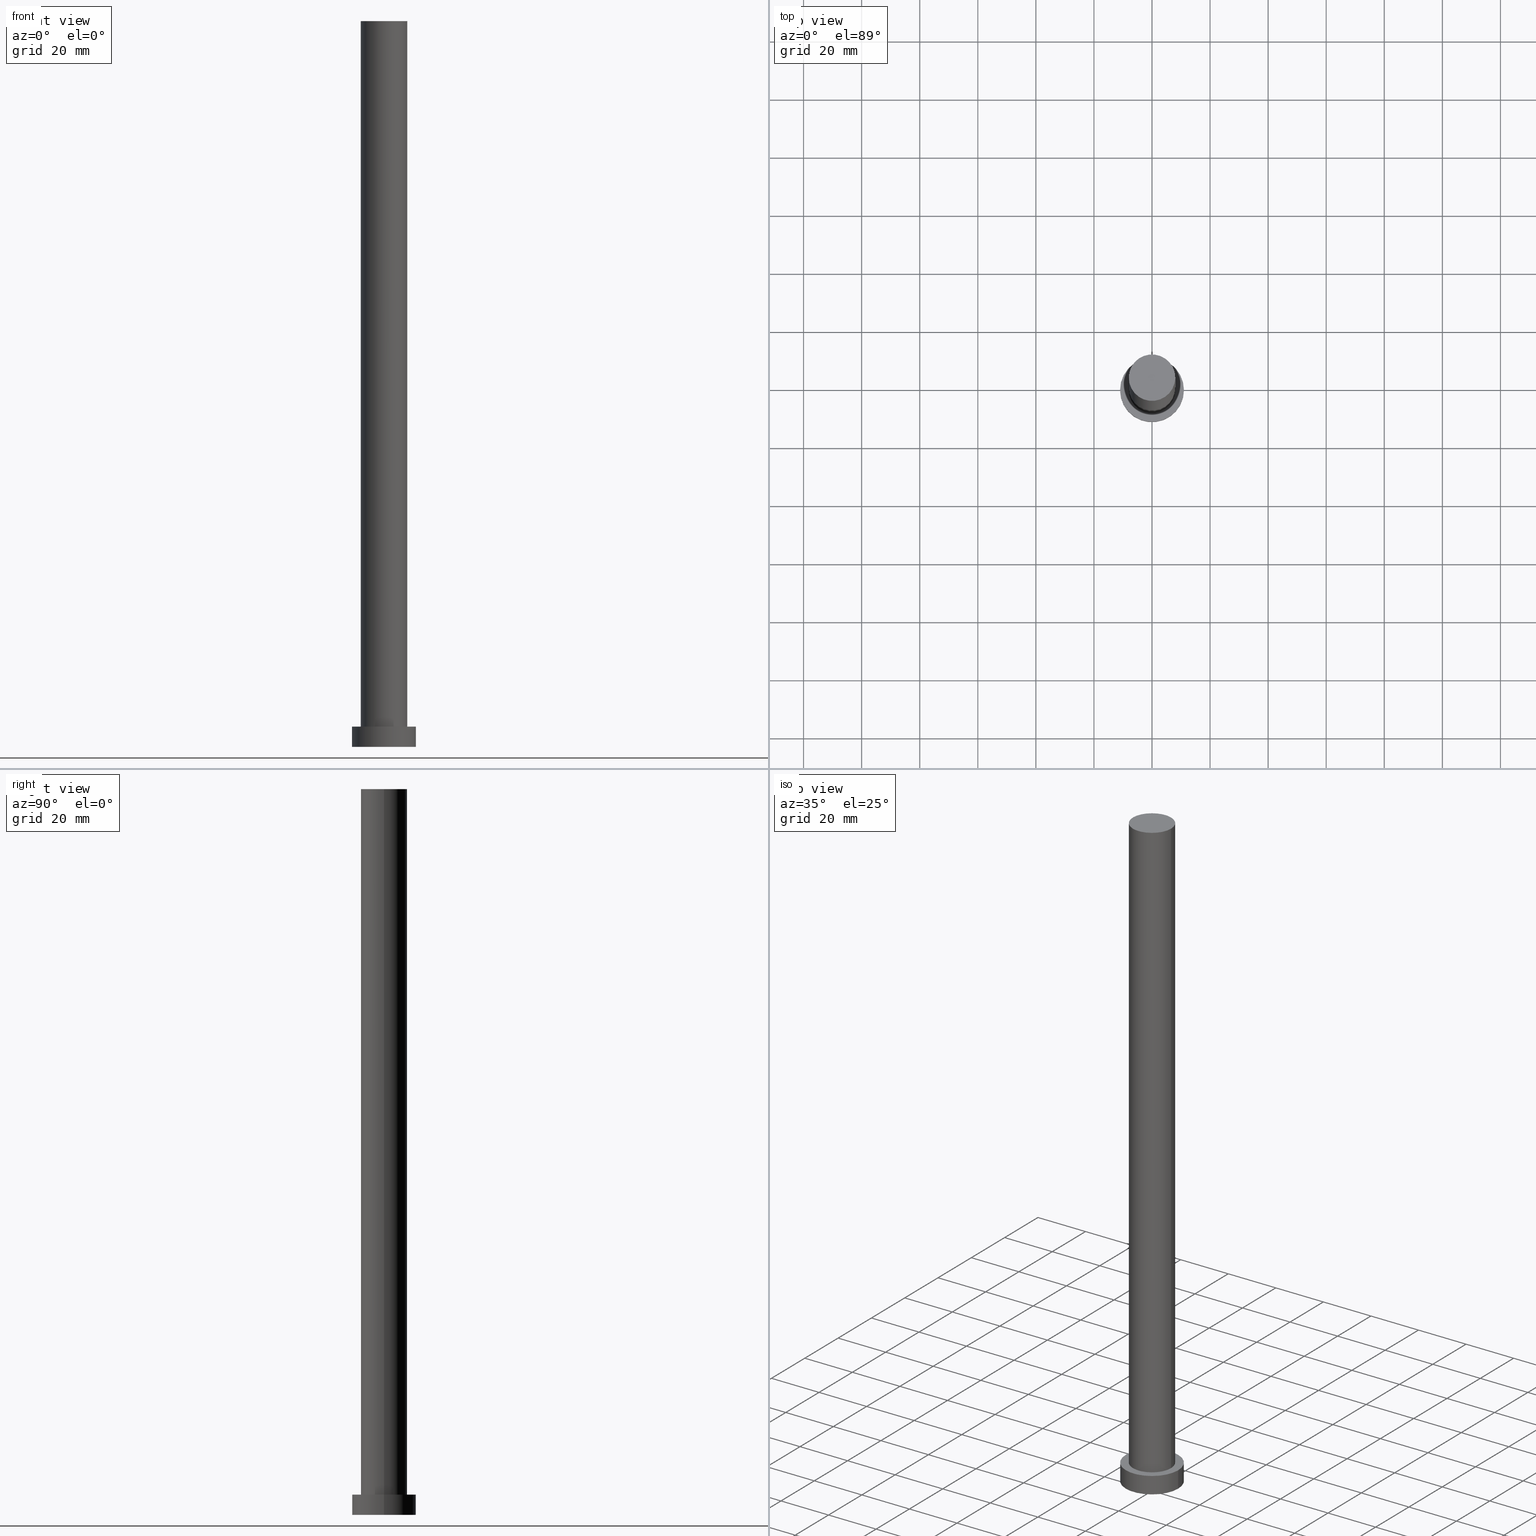
[diagram: canonical four-view strip — front | top / right | iso, engineering-drawing reading convention]
A machine part, canonical four-view strip (front | top / right | iso — engineering-drawing reading convention). The complete STEP part file that produces these views, byte-faithful:
ISO-10303-21;
HEADER;
FILE_DESCRIPTION (( 'STEP AP203' ),
    '1' );
FILE_NAME ('76f3.STEP',
    '2023-02-13T08:52:44',
    ( '' ),
    ( '' ),
    'SwSTEP 2.0',
    'SolidWorks 2019',
    '' );
FILE_SCHEMA (( 'CONFIG_CONTROL_DESIGN' ));
ENDSEC;

DATA;
#1 = CARTESIAN_POINT ( 'NONE',  ( 0.000000000000000000, 0.000000000000000000, 250.0000000000000000 ) ) ;
#2 = AXIS2_PLACEMENT_3D ( 'NONE', #24, #6, #19 ) ;
#3 = DIRECTION ( 'NONE',  ( 1.000000000000000000, 0.000000000000000000, 0.000000000000000000 ) ) ;
#4 = CARTESIAN_POINT ( 'NONE',  ( 11.00000000000000000, 1.347111479062088405E-15, 7.000000000000000000 ) ) ;
#5 = DIRECTION ( 'NONE',  ( 1.000000000000000000, 0.000000000000000000, 0.000000000000000000 ) ) ;
#6 = DIRECTION ( 'NONE',  ( 0.000000000000000000, 0.000000000000000000, 1.000000000000000000 ) ) ;
#7 = APPROVAL ( #90, 'NEUR�EN�' ) ;
#8 =( GEOMETRIC_REPRESENTATION_CONTEXT ( 3 ) GLOBAL_UNCERTAINTY_ASSIGNED_CONTEXT ( ( #66 ) ) GLOBAL_UNIT_ASSIGNED_CONTEXT ( ( #88, #27, #71 ) ) REPRESENTATION_CONTEXT ( 'NONE', 'WORKASPACE' ) );
#9 = APPROVAL_ROLE ( '' ) ;
#10 = CARTESIAN_POINT ( 'NONE',  ( 0.000000000000000000, 0.000000000000000000, 0.000000000000000000 ) ) ;
#11 = EDGE_CURVE ( 'NONE', #217, #18, #31, .T. ) ;
#12 = APPROVAL_DATE_TIME ( #207, #201 ) ;
#13 = ORIENTED_EDGE ( 'NONE', *, *, #230, .T. ) ;
#14 = CC_DESIGN_PERSON_AND_ORGANIZATION_ASSIGNMENT ( #183, #131, ( #102 ) ) ;
#15 = ORIENTED_EDGE ( 'NONE', *, *, #93, .F. ) ;
#16 = ORIENTED_EDGE ( 'NONE', *, *, #211, .F. ) ;
#17 = AXIS2_PLACEMENT_3D ( 'NONE', #221, #147, #179 ) ;
#18 = VERTEX_POINT ( 'NONE', #213 ) ;
#19 = DIRECTION ( 'NONE',  ( 1.000000000000000000, 0.000000000000000000, -0.000000000000000000 ) ) ;
#20 = CIRCLE ( 'NONE', #98, 8.000000000000000000 ) ;
#21 = DIRECTION ( 'NONE',  ( 0.000000000000000000, 0.000000000000000000, 1.000000000000000000 ) ) ;
#22 = PRODUCT_DEFINITION_FORMATION_WITH_SPECIFIED_SOURCE ( 'LIBOVOLN�', '', #89, .NOT_KNOWN. ) ;
#23 = CARTESIAN_POINT ( 'NONE',  ( 0.000000000000000000, 0.000000000000000000, 7.000000000000000000 ) ) ;
#24 = CARTESIAN_POINT ( 'NONE',  ( 0.000000000000000000, 0.000000000000000000, 7.000000000000000000 ) ) ;
#25 = APPROVAL_DATE_TIME ( #49, #7 ) ;
#26 = APPROVAL_DATE_TIME ( #203, #252 ) ;
#27 =( NAMED_UNIT ( * ) PLANE_ANGLE_UNIT ( ) SI_UNIT ( $, .RADIAN. ) );
#28 = DIRECTION ( 'NONE',  ( 1.000000000000000000, 0.000000000000000000, 0.000000000000000000 ) ) ;
#29 = CC_DESIGN_APPROVAL ( #252, ( #73 ) ) ;
#30 = PERSON_AND_ORGANIZATION ( #101, #120 ) ;
#31 = LINE ( 'NONE', #197, #54 ) ;
#32 = AXIS2_PLACEMENT_3D ( 'NONE', #237, #69, #92 ) ;
#33 = CARTESIAN_POINT ( 'NONE',  ( 0.000000000000000000, 0.000000000000000000, 250.0000000000000000 ) ) ;
#34 = VERTEX_POINT ( 'NONE', #176 ) ;
#35 = ORIENTED_EDGE ( 'NONE', *, *, #93, .T. ) ;
#36 = AXIS2_PLACEMENT_3D ( 'NONE', #10, #188, #28 ) ;
#37 = DIRECTION ( 'NONE',  ( 0.000000000000000000, 0.000000000000000000, 1.000000000000000000 ) ) ;
#38 = DIRECTION ( 'NONE',  ( 0.000000000000000000, 0.000000000000000000, 1.000000000000000000 ) ) ;
#39 = CALENDAR_DATE ( 2023, 13, 2 ) ;
#40 = CYLINDRICAL_SURFACE ( 'NONE', #17, 11.00000000000000000 ) ;
#41 = EDGE_CURVE ( 'NONE', #212, #217, #216, .T. ) ;
#42 = DIRECTION ( 'NONE',  ( 1.000000000000000000, 0.000000000000000000, -0.000000000000000000 ) ) ;
#43 = DIRECTION ( 'NONE',  ( -1.000000000000000000, 0.000000000000000000, 0.000000000000000000 ) ) ;
#44 = CALENDAR_DATE ( 2023, 13, 2 ) ;
#45 = CLOSED_SHELL ( 'NONE', ( #62, #87, #222, #55, #72, #196, #232 ) ) ;
#46 = COORDINATED_UNIVERSAL_TIME_OFFSET ( 1, 0, .AHEAD. ) ;
#47 = PERSON_AND_ORGANIZATION ( #101, #120 ) ;
#48 = DATE_AND_TIME ( #229, #141 ) ;
#49 = DATE_AND_TIME ( #231, #246 ) ;
#50 = ORIENTED_EDGE ( 'NONE', *, *, #94, .T. ) ;
#51 = PRODUCT_RELATED_PRODUCT_CATEGORY ( 'detail', '', ( #89 ) ) ;
#52 = EDGE_LOOP ( 'NONE', ( #96, #125 ) ) ;
#53 = EDGE_CURVE ( 'NONE', #118, #215, #192, .T. ) ;
#54 = VECTOR ( 'NONE', #135, 1000.000000000000000 ) ;
#55 = ADVANCED_FACE ( 'NONE', ( #78, #159 ), #223, .T. ) ;
#56 = ORIENTED_EDGE ( 'NONE', *, *, #236, .T. ) ;
#57 = EDGE_LOOP ( 'NONE', ( #76, #139, #249, #138 ) ) ;
#58 = CYLINDRICAL_SURFACE ( 'NONE', #169, 11.00000000000000000 ) ;
#59 = CC_DESIGN_APPROVAL ( #7, ( #102 ) ) ;
#60 = AXIS2_PLACEMENT_3D ( 'NONE', #1, #181, #43 ) ;
#61 = FACE_OUTER_BOUND ( 'NONE', #174, .T. ) ;
#62 = ADVANCED_FACE ( 'NONE', ( #143 ), #182, .T. ) ;
#63 = CARTESIAN_POINT ( 'NONE',  ( 8.000000000000000000, 9.797174393178825657E-16, 250.0000000000000000 ) ) ;
#64 = CC_DESIGN_SECURITY_CLASSIFICATION ( #73, ( #22 ) ) ;
#65 = DIRECTION ( 'NONE',  ( 1.000000000000000000, 0.000000000000000000, 0.000000000000000000 ) ) ;
#66 = UNCERTAINTY_MEASURE_WITH_UNIT (LENGTH_MEASURE( 1.000000000000000082E-05 ), #88, 'distance_accuracy_value', 'NONE');
#67 = COORDINATED_UNIVERSAL_TIME_OFFSET ( 1, 0, .AHEAD. ) ;
#68 = PERSON_AND_ORGANIZATION_ROLE ( 'classification_officer' ) ;
#69 = DIRECTION ( 'NONE',  ( 0.000000000000000000, 0.000000000000000000, 1.000000000000000000 ) ) ;
#70 = PERSON_AND_ORGANIZATION_ROLE ( 'design_supplier' ) ;
#71 =( NAMED_UNIT ( * ) SI_UNIT ( $, .STERADIAN. ) SOLID_ANGLE_UNIT ( ) );
#72 = ADVANCED_FACE ( 'NONE', ( #61 ), #144, .F. ) ;
#73 = SECURITY_CLASSIFICATION ( '', '', #114 ) ;
#74 = ORIENTED_EDGE ( 'NONE', *, *, #11, .F. ) ;
#75 = ORIENTED_EDGE ( 'NONE', *, *, #226, .T. ) ;
#76 = ORIENTED_EDGE ( 'NONE', *, *, #123, .F. ) ;
#77 = CIRCLE ( 'NONE', #162, 11.00000000000000000 ) ;
#78 = FACE_BOUND ( 'NONE', #156, .T. ) ;
#79 = EDGE_LOOP ( 'NONE', ( #214, #124, #13, #35 ) ) ;
#80 = PLANE ( 'NONE',  #32 ) ;
#81 = DIRECTION ( 'NONE',  ( 0.000000000000000000, 0.000000000000000000, 1.000000000000000000 ) ) ;
#82 = CARTESIAN_POINT ( 'NONE',  ( 0.000000000000000000, 0.000000000000000000, 7.000000000000000000 ) ) ;
#83 = MANIFOLD_SOLID_BREP ( 'P�idat vysunut�m3', #45 ) ;
#84 = CARTESIAN_POINT ( 'NONE',  ( 0.000000000000000000, 0.000000000000000000, 7.000000000000000000 ) ) ;
#85 = FACE_OUTER_BOUND ( 'NONE', #134, .T. ) ;
#86 = CARTESIAN_POINT ( 'NONE',  ( -8.000000000000000000, 0.000000000000000000, 7.000000000000000000 ) ) ;
#87 = ADVANCED_FACE ( 'NONE', ( #104 ), #40, .T. ) ;
#88 =( LENGTH_UNIT ( ) NAMED_UNIT ( * ) SI_UNIT ( .MILLI., .METRE. ) );
#89 = PRODUCT ( '76f3', '76f3', '', ( #210 ) ) ;
#90 = APPROVAL_STATUS ( 'not_yet_approved' ) ;
#91 = CIRCLE ( 'NONE', #128, 11.00000000000000000 ) ;
#92 = DIRECTION ( 'NONE',  ( 1.000000000000000000, 0.000000000000000000, -0.000000000000000000 ) ) ;
#93 = EDGE_CURVE ( 'NONE', #34, #215, #148, .T. ) ;
#94 = EDGE_CURVE ( 'NONE', #234, #18, #20, .T. ) ;
#95 = EDGE_LOOP ( 'NONE', ( #233, #100 ) ) ;
#96 = ORIENTED_EDGE ( 'NONE', *, *, #41, .T. ) ;
#97 = ORIENTED_EDGE ( 'NONE', *, *, #94, .F. ) ;
#98 = AXIS2_PLACEMENT_3D ( 'NONE', #23, #81, #65 ) ;
#99 = APPROVAL_PERSON_ORGANIZATION ( #178, #252, #190 ) ;
#100 = ORIENTED_EDGE ( 'NONE', *, *, #123, .T. ) ;
#101 = PERSON ( 'NEUR�EN�', 'NEUR�EN�', 'NEUR�EN�', ('NEUR�EN�'), ('NEUR�EN�'), ('NEUR�EN�') ) ;
#102 = PRODUCT_DEFINITION ( 'NEZN�M�', '', #22, #220 ) ;
#103 = DIRECTION ( 'NONE',  ( 0.000000000000000000, 0.000000000000000000, 1.000000000000000000 ) ) ;
#104 = FACE_OUTER_BOUND ( 'NONE', #57, .T. ) ;
#105 = DIRECTION ( 'NONE',  ( 0.000000000000000000, 0.000000000000000000, 1.000000000000000000 ) ) ;
#106 = EDGE_CURVE ( 'NONE', #217, #212, #173, .T. ) ;
#107 = CC_DESIGN_PERSON_AND_ORGANIZATION_ASSIGNMENT ( #208, #248, ( #22 ) ) ;
#108 = CARTESIAN_POINT ( 'NONE',  ( 0.000000000000000000, 0.000000000000000000, 250.0000000000000000 ) ) ;
#109 = CARTESIAN_POINT ( 'NONE',  ( 11.00000000000000000, 1.347111479062088405E-15, 0.000000000000000000 ) ) ;
#110 = SHAPE_DEFINITION_REPRESENTATION ( #152, #204 ) ;
#111 = AXIS2_PLACEMENT_3D ( 'NONE', #33, #175, #121 ) ;
#112 = APPLICATION_PROTOCOL_DEFINITION ( 'international standard', 'config_control_design', 1994, #185 ) ;
#113 = LOCAL_TIME ( 9, 52, 44.00000000000000000, #67 ) ;
#114 = SECURITY_CLASSIFICATION_LEVEL ( 'unclassified' ) ;
#115 = PERSON_AND_ORGANIZATION ( #101, #120 ) ;
#116 = AXIS2_PLACEMENT_3D ( 'NONE', #82, #103, #129 ) ;
#117 = DIRECTION ( 'NONE',  ( -0.000000000000000000, -0.000000000000000000, -1.000000000000000000 ) ) ;
#118 = VERTEX_POINT ( 'NONE', #4 ) ;
#119 = VECTOR ( 'NONE', #253, 1000.000000000000000 ) ;
#120 = ORGANIZATION ( 'NEUR�EN�', 'NEUR�EN�', '' ) ;
#121 = DIRECTION ( 'NONE',  ( 1.000000000000000000, 0.000000000000000000, 0.000000000000000000 ) ) ;
#122 = ORIENTED_EDGE ( 'NONE', *, *, #41, .F. ) ;
#123 = EDGE_CURVE ( 'NONE', #118, #250, #91, .T. ) ;
#124 = ORIENTED_EDGE ( 'NONE', *, *, #167, .F. ) ;
#125 = ORIENTED_EDGE ( 'NONE', *, *, #106, .T. ) ;
#126 = DIRECTION ( 'NONE',  ( -0.000000000000000000, -0.000000000000000000, -1.000000000000000000 ) ) ;
#127 = CARTESIAN_POINT ( 'NONE',  ( 0.000000000000000000, 0.000000000000000000, 0.000000000000000000 ) ) ;
#128 = AXIS2_PLACEMENT_3D ( 'NONE', #219, #37, #3 ) ;
#129 = DIRECTION ( 'NONE',  ( 1.000000000000000000, 0.000000000000000000, 0.000000000000000000 ) ) ;
#130 = DIRECTION ( 'NONE',  ( 1.000000000000000000, 0.000000000000000000, 0.000000000000000000 ) ) ;
#131 = PERSON_AND_ORGANIZATION_ROLE ( 'creator' ) ;
#132 = APPROVAL_ROLE ( '' ) ;
#133 = DATE_TIME_ROLE ( 'creation_date' ) ;
#134 = EDGE_LOOP ( 'NONE', ( #74, #122, #56, #50 ) ) ;
#135 = DIRECTION ( 'NONE',  ( -0.000000000000000000, -0.000000000000000000, -1.000000000000000000 ) ) ;
#136 = AXIS2_PLACEMENT_3D ( 'NONE', #161, #38, #42 ) ;
#137 = APPROVAL_PERSON_ORGANIZATION ( #115, #201, #9 ) ;
#138 = ORIENTED_EDGE ( 'NONE', *, *, #230, .F. ) ;
#139 = ORIENTED_EDGE ( 'NONE', *, *, #53, .T. ) ;
#140 = EDGE_LOOP ( 'NONE', ( #157, #193, #75, #155 ) ) ;
#141 = LOCAL_TIME ( 9, 52, 44.00000000000000000, #46 ) ;
#142 = DIRECTION ( 'NONE',  ( 1.000000000000000000, 0.000000000000000000, 0.000000000000000000 ) ) ;
#143 = FACE_OUTER_BOUND ( 'NONE', #140, .T. ) ;
#144 = PLANE ( 'NONE',  #136 ) ;
#145 = DIRECTION ( 'NONE',  ( -1.000000000000000000, 0.000000000000000000, 0.000000000000000000 ) ) ;
#146 = APPROVAL_PERSON_ORGANIZATION ( #47, #7, #132 ) ;
#147 = DIRECTION ( 'NONE',  ( -0.000000000000000000, -0.000000000000000000, -1.000000000000000000 ) ) ;
#148 = CIRCLE ( 'NONE', #245, 11.00000000000000000 ) ;
#149 = APPLICATION_PROTOCOL_DEFINITION ( 'international standard', 'config_control_design', 1994, #240 ) ;
#150 = CARTESIAN_POINT ( 'NONE',  ( -8.000000000000000000, 0.000000000000000000, 250.0000000000000000 ) ) ;
#151 = DATE_AND_TIME ( #247, #206 ) ;
#152 = PRODUCT_DEFINITION_SHAPE ( 'NONE', 'NONE',  #102 ) ;
#153 = COORDINATED_UNIVERSAL_TIME_OFFSET ( 1, 0, .AHEAD. ) ;
#154 = CC_DESIGN_APPROVAL ( #201, ( #22 ) ) ;
#155 = ORIENTED_EDGE ( 'NONE', *, *, #236, .F. ) ;
#156 = EDGE_LOOP ( 'NONE', ( #97, #194 ) ) ;
#157 = ORIENTED_EDGE ( 'NONE', *, *, #106, .F. ) ;
#158 = AXIS2_PLACEMENT_3D ( 'NONE', #241, #126, #199 ) ;
#159 = FACE_OUTER_BOUND ( 'NONE', #95, .T. ) ;
#160 = CC_DESIGN_DATE_AND_TIME_ASSIGNMENT ( #151, #133, ( #102 ) ) ;
#161 = CARTESIAN_POINT ( 'NONE',  ( 0.000000000000000000, 0.000000000000000000, 0.000000000000000000 ) ) ;
#162 = AXIS2_PLACEMENT_3D ( 'NONE', #84, #105, #165 ) ;
#163 = FACE_OUTER_BOUND ( 'NONE', #79, .T. ) ;
#164 = LINE ( 'NONE', #205, #189 ) ;
#165 = DIRECTION ( 'NONE',  ( 1.000000000000000000, 0.000000000000000000, 0.000000000000000000 ) ) ;
#166 = COORDINATED_UNIVERSAL_TIME_OFFSET ( 1, 0, .AHEAD. ) ;
#167 = EDGE_CURVE ( 'NONE', #250, #118, #77, .T. ) ;
#168 = DIRECTION ( 'NONE',  ( 0.000000000000000000, 0.000000000000000000, 1.000000000000000000 ) ) ;
#169 = AXIS2_PLACEMENT_3D ( 'NONE', #239, #180, #145 ) ;
#170 = CC_DESIGN_DATE_AND_TIME_ASSIGNMENT ( #48, #251, ( #73 ) ) ;
#171 = PERSON_AND_ORGANIZATION_ROLE ( 'design_owner' ) ;
#172 = APPROVAL_STATUS ( 'not_yet_approved' ) ;
#173 = CIRCLE ( 'NONE', #200, 8.000000000000000000 ) ;
#174 = EDGE_LOOP ( 'NONE', ( #15, #16 ) ) ;
#175 = DIRECTION ( 'NONE',  ( 0.000000000000000000, 0.000000000000000000, 1.000000000000000000 ) ) ;
#176 = CARTESIAN_POINT ( 'NONE',  ( -11.00000000000000000, 0.000000000000000000, 0.000000000000000000 ) ) ;
#177 = LOCAL_TIME ( 9, 52, 44.00000000000000000, #166 ) ;
#178 = PERSON_AND_ORGANIZATION ( #101, #120 ) ;
#179 = DIRECTION ( 'NONE',  ( -1.000000000000000000, 0.000000000000000000, 0.000000000000000000 ) ) ;
#180 = DIRECTION ( 'NONE',  ( -0.000000000000000000, -0.000000000000000000, -1.000000000000000000 ) ) ;
#181 = DIRECTION ( 'NONE',  ( -0.000000000000000000, -0.000000000000000000, -1.000000000000000000 ) ) ;
#182 = CYLINDRICAL_SURFACE ( 'NONE', #158, 8.000000000000000000 ) ;
#183 = PERSON_AND_ORGANIZATION ( #101, #120 ) ;
#184 = AXIS2_PLACEMENT_3D ( 'NONE', #198, #168, #130 ) ;
#185 = APPLICATION_CONTEXT ( 'configuration controlled 3d designs of mechanical parts and assemblies' ) ;
#186 = PERSON_AND_ORGANIZATION ( #101, #120 ) ;
#187 = LINE ( 'NONE', #150, #254 ) ;
#188 = DIRECTION ( 'NONE',  ( 0.000000000000000000, 0.000000000000000000, 1.000000000000000000 ) ) ;
#189 = VECTOR ( 'NONE', #224, 1000.000000000000000 ) ;
#190 = APPROVAL_ROLE ( '' ) ;
#191 = CC_DESIGN_PERSON_AND_ORGANIZATION_ASSIGNMENT ( #30, #171, ( #89 ) ) ;
#192 = LINE ( 'NONE', #235, #119 ) ;
#193 = ORIENTED_EDGE ( 'NONE', *, *, #11, .T. ) ;
#194 = ORIENTED_EDGE ( 'NONE', *, *, #226, .F. ) ;
#195 = CIRCLE ( 'NONE', #116, 8.000000000000000000 ) ;
#196 = ADVANCED_FACE ( 'NONE', ( #85 ), #225, .T. ) ;
#197 = CARTESIAN_POINT ( 'NONE',  ( 8.000000000000000000, 9.797174393178825657E-16, 250.0000000000000000 ) ) ;
#198 = CARTESIAN_POINT ( 'NONE',  ( 0.000000000000000000, 0.000000000000000000, 0.000000000000000000 ) ) ;
#199 = DIRECTION ( 'NONE',  ( -1.000000000000000000, 0.000000000000000000, 0.000000000000000000 ) ) ;
#200 = AXIS2_PLACEMENT_3D ( 'NONE', #108, #21, #5 ) ;
#201 = APPROVAL ( #172, 'NEUR�EN�' ) ;
#202 = FACE_OUTER_BOUND ( 'NONE', #52, .T. ) ;
#203 = DATE_AND_TIME ( #39, #177 ) ;
#204 = ADVANCED_BREP_SHAPE_REPRESENTATION ( '76f3', ( #83, #36 ), #8 ) ;
#205 = CARTESIAN_POINT ( 'NONE',  ( -11.00000000000000000, 0.000000000000000000, 7.000000000000000000 ) ) ;
#206 = LOCAL_TIME ( 9, 52, 44.00000000000000000, #209 ) ;
#207 = DATE_AND_TIME ( #44, #113 ) ;
#208 = PERSON_AND_ORGANIZATION ( #101, #120 ) ;
#209 = COORDINATED_UNIVERSAL_TIME_OFFSET ( 1, 0, .AHEAD. ) ;
#210 = MECHANICAL_CONTEXT ( 'NONE', #185, 'mechanical' ) ;
#211 = EDGE_CURVE ( 'NONE', #215, #34, #218, .T. ) ;
#212 = VERTEX_POINT ( 'NONE', #242 ) ;
#213 = CARTESIAN_POINT ( 'NONE',  ( 8.000000000000000000, 9.797174393178825657E-16, 7.000000000000000000 ) ) ;
#214 = ORIENTED_EDGE ( 'NONE', *, *, #53, .F. ) ;
#215 = VERTEX_POINT ( 'NONE', #109 ) ;
#216 = CIRCLE ( 'NONE', #111, 8.000000000000000000 ) ;
#217 = VERTEX_POINT ( 'NONE', #63 ) ;
#218 = CIRCLE ( 'NONE', #184, 11.00000000000000000 ) ;
#219 = CARTESIAN_POINT ( 'NONE',  ( 0.000000000000000000, 0.000000000000000000, 7.000000000000000000 ) ) ;
#220 = DESIGN_CONTEXT ( 'detailed design', #240, 'design' ) ;
#221 = CARTESIAN_POINT ( 'NONE',  ( 0.000000000000000000, 0.000000000000000000, 7.000000000000000000 ) ) ;
#222 = ADVANCED_FACE ( 'NONE', ( #163 ), #58, .T. ) ;
#223 = PLANE ( 'NONE',  #2 ) ;
#224 = DIRECTION ( 'NONE',  ( -0.000000000000000000, -0.000000000000000000, -1.000000000000000000 ) ) ;
#225 = CYLINDRICAL_SURFACE ( 'NONE', #60, 8.000000000000000000 ) ;
#226 = EDGE_CURVE ( 'NONE', #18, #234, #195, .T. ) ;
#227 = CARTESIAN_POINT ( 'NONE',  ( -11.00000000000000000, 0.000000000000000000, 7.000000000000000000 ) ) ;
#228 = CC_DESIGN_PERSON_AND_ORGANIZATION_ASSIGNMENT ( #186, #68, ( #73 ) ) ;
#229 = CALENDAR_DATE ( 2023, 13, 2 ) ;
#230 = EDGE_CURVE ( 'NONE', #250, #34, #164, .T. ) ;
#231 = CALENDAR_DATE ( 2023, 13, 2 ) ;
#232 = ADVANCED_FACE ( 'NONE', ( #202 ), #80, .T. ) ;
#233 = ORIENTED_EDGE ( 'NONE', *, *, #167, .T. ) ;
#234 = VERTEX_POINT ( 'NONE', #86 ) ;
#235 = CARTESIAN_POINT ( 'NONE',  ( 11.00000000000000000, 1.347111479062088405E-15, 7.000000000000000000 ) ) ;
#236 = EDGE_CURVE ( 'NONE', #212, #234, #187, .T. ) ;
#237 = CARTESIAN_POINT ( 'NONE',  ( 0.000000000000000000, 0.000000000000000000, 250.0000000000000000 ) ) ;
#238 = APPROVAL_STATUS ( 'not_yet_approved' ) ;
#239 = CARTESIAN_POINT ( 'NONE',  ( 0.000000000000000000, 0.000000000000000000, 7.000000000000000000 ) ) ;
#240 = APPLICATION_CONTEXT ( 'configuration controlled 3d designs of mechanical parts and assemblies' ) ;
#241 = CARTESIAN_POINT ( 'NONE',  ( 0.000000000000000000, 0.000000000000000000, 250.0000000000000000 ) ) ;
#242 = CARTESIAN_POINT ( 'NONE',  ( -8.000000000000000000, 0.000000000000000000, 250.0000000000000000 ) ) ;
#243 = DIRECTION ( 'NONE',  ( 0.000000000000000000, 0.000000000000000000, 1.000000000000000000 ) ) ;
#244 = PERSON_AND_ORGANIZATION ( #101, #120 ) ;
#245 = AXIS2_PLACEMENT_3D ( 'NONE', #127, #243, #142 ) ;
#246 = LOCAL_TIME ( 9, 52, 44.00000000000000000, #153 ) ;
#247 = CALENDAR_DATE ( 2023, 13, 2 ) ;
#248 = PERSON_AND_ORGANIZATION_ROLE ( 'creator' ) ;
#249 = ORIENTED_EDGE ( 'NONE', *, *, #211, .T. ) ;
#250 = VERTEX_POINT ( 'NONE', #227 ) ;
#251 = DATE_TIME_ROLE ( 'classification_date' ) ;
#252 = APPROVAL ( #238, 'NEUR�EN�' ) ;
#253 = DIRECTION ( 'NONE',  ( -0.000000000000000000, -0.000000000000000000, -1.000000000000000000 ) ) ;
#254 = VECTOR ( 'NONE', #117, 1000.000000000000000 ) ;
#255 = CC_DESIGN_PERSON_AND_ORGANIZATION_ASSIGNMENT ( #244, #70, ( #22 ) ) ;
ENDSEC;
END-ISO-10303-21;
